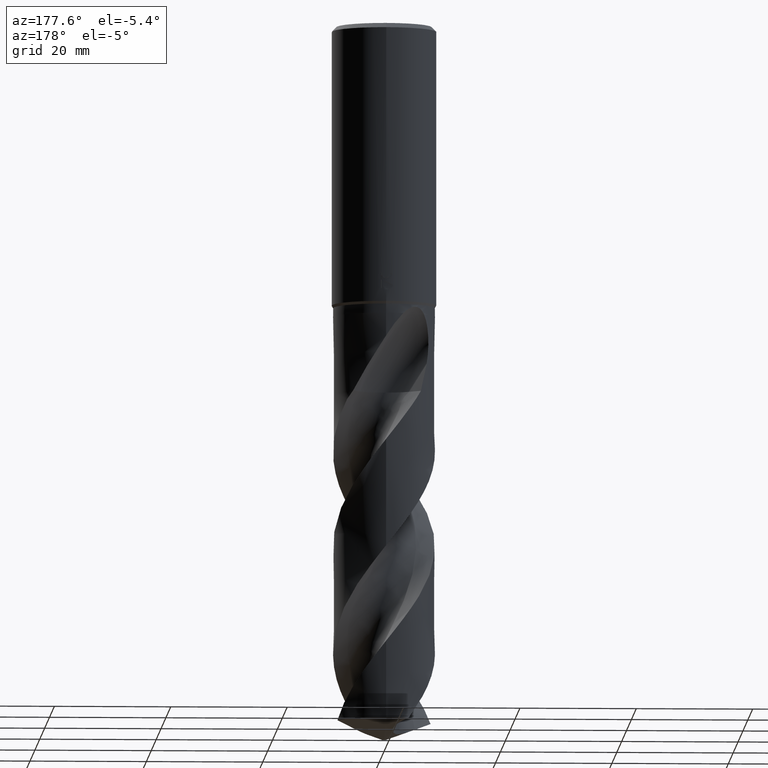
[diagram: clean part render]
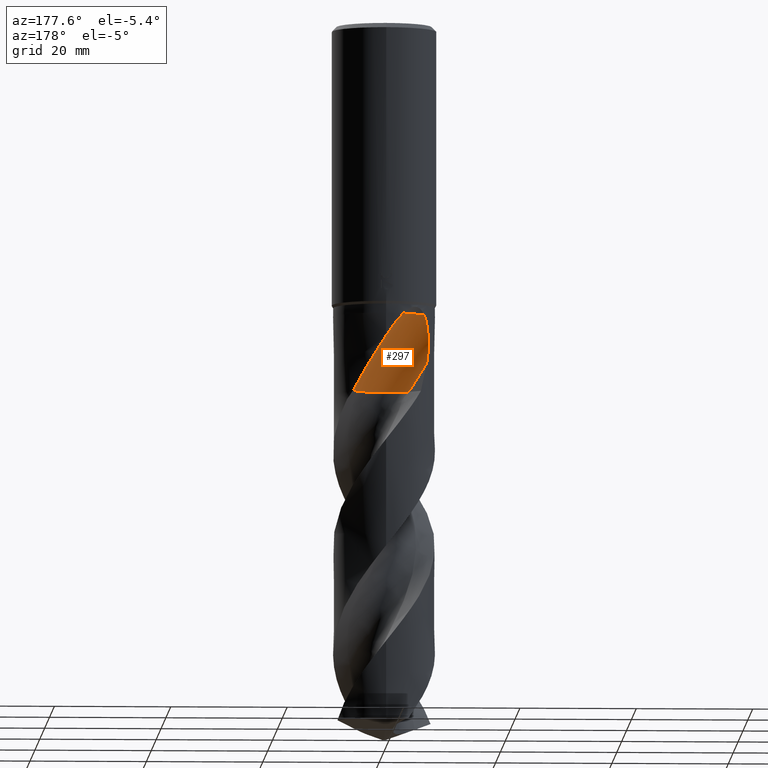
[diagram: same view with one face highlighted and labeled with its STEP entity id]
A machine part, auxiliary view. The second image highlights one B-rep face of the part: STEP entity #297.
In plain terms, the highlighted face is a SurfaceOfRevolution surface.
Its self-contained STEP definition (entity closure, byte-faithful):
#283=VERTEX_POINT('',#768);
#297=ADVANCED_FACE('',(#782),#783,.F.);
#329=EDGE_CURVE('',#283,#385,#818,.T.);
#345=VERTEX_POINT('',#834);
#385=VERTEX_POINT('',#880);
#397=VERTEX_POINT('',#894);
#435=EDGE_CURVE('',#457,#345,#939,.T.);
#445=VERTEX_POINT('',#949);
#451=EDGE_CURVE('',#555,#345,#955,.T.);
#457=VERTEX_POINT('',#961);
#555=VERTEX_POINT('',#1071);
#671=EDGE_CURVE('',#385,#555,#1196,.T.);
#673=EDGE_CURVE('',#397,#457,#1198,.T.);
#679=EDGE_CURVE('',#283,#445,#1204,.T.);
#725=EDGE_CURVE('',#445,#397,#1252,.T.);
#768=CARTESIAN_POINT('',(5.57559287318262,6.74342982981346,-63.235));
#782=FACE_OUTER_BOUND('',#1414,.T.);
#783=SURFACE_OF_REVOLUTION('',#1415,#1416);
#818=CIRCLE('',#1525,5.83333333);
#834=CARTESIAN_POINT('',(-7.11928478301169,5.08691909114738,-58.4438076343714));
#880=CARTESIAN_POINT('',(-0.629260716022749,2.65901798881034,-63.235));
#894=CARTESIAN_POINT('',(-2.97701163631891,8.22788865549491,-50.0));
#939=B_SPLINE_CURVE_WITH_KNOTS('',3,(#1879,#1880,#1881,#1882,#1883,#1884,#1885,#1886,#1887,#1888),.UNSPECIFIED.,.F.,.F.,(4,2,2,2,4),(0.0,1.64422334483908,3.9420113152009,5.14731425818044,6.40533069731672),.UNSPECIFIED.);
#949=CARTESIAN_POINT('',(-3.78455049373546E-013,8.74990563483617,-53.9339755541501));
#955=CIRCLE('',#1908,38.0210241106378);
#961=CARTESIAN_POINT('',(-6.63187349019705,5.70780203055621,-50.0));
#1071=CARTESIAN_POINT('',(-4.12478955449379,4.33354377550621,-63.235));
#1196=CIRCLE('',#5080,5.83333333);
#1198=B_SPLINE_CURVE_WITH_KNOTS('',3,(#5083,#5084,#5085,#5086,#5087,#5088,#5089,#5090,#5091,#5092),.UNSPECIFIED.,.F.,.F.,(4,2,2,2,4),(0.0,1.89437961589908,3.62938960337551,5.38410260870692,7.51281131798792),.UNSPECIFIED.);
#1204=B_SPLINE_CURVE_WITH_KNOTS('',3,(#5101,#5102,#5103,#5104,#5105,#5106,#5107,#5108,#5109,#5110,#5111,#5112,#5113,#5114),.UNSPECIFIED.,.F.,.F.,(4,2,2,2,2,2,4),(0.0,4.14988247690823,6.52862533745511,8.64910496144641,11.0925197142912,14.0430155067481,15.7093675855229),.UNSPECIFIED.);
#1252=B_SPLINE_CURVE_WITH_KNOTS('',3,(#5417,#5418,#5419,#5420,#5421,#5422,#5423,#5424,#5425,#5426,#5427,#5428,#5429,#5430),.UNSPECIFIED.,.F.,.F.,(4,2,2,2,2,2,4),(0.0,4.14988247690823,6.52862533745511,8.64910496144641,11.0925197142912,14.0430155067481,15.7093675855229),.UNSPECIFIED.);
#1414=EDGE_LOOP('',(#5467,#5468,#5469,#5470,#5471,#5472,#5473));
#1415=(B_SPLINE_CURVE(3,(#5475,#5476,#5477,#5478,#5479,#5480,#5481,#5482,#5483),.UNSPECIFIED.,.F.,.F.)B_SPLINE_CURVE_WITH_KNOTS((4,1,3,1,4),(-2.85639446721243,-2.55363934316118,-2.25088421910994,-1.9481290950587,-1.64537397100745),.UNSPECIFIED.)RATIONAL_B_SPLINE_CURVE((1.09166066513928,1.03055355504643,0.969446444953572,1.03055355504643,1.09166066513928,1.03055355504643,0.969446444953572,1.03055355504643,1.09166066513928))BOUNDED_CURVE()REPRESENTATION_ITEM('')GEOMETRIC_REPRESENTATION_ITEM()CURVE());
#1416=AXIS1_PLACEMENT('',#5490,#5491);
#1525=AXIS2_PLACEMENT_3D('',#5547,#5548,#5549);
#1879=CARTESIAN_POINT('',(-6.63187349019706,5.70780203055621,-50.0));
#1880=CARTESIAN_POINT('',(-6.84808104532585,5.45659225227045,-50.4365014790994));
#1881=CARTESIAN_POINT('',(-7.01835431055026,5.22992634720042,-50.9789288608092));
#1882=CARTESIAN_POINT('',(-7.32355230996356,4.7980632089873,-52.4715702501462));
#1883=CARTESIAN_POINT('',(-7.42450096489546,4.63008954785741,-53.5264574254388));
#1884=CARTESIAN_POINT('',(-7.43276960911426,4.61680066875962,-55.3246708938513));
#1885=CARTESIAN_POINT('',(-7.40884157712586,4.65600228667079,-55.9434451402187));
#1886=CARTESIAN_POINT('',(-7.30757089408643,4.81346859328869,-57.1955215219754));
#1887=CARTESIAN_POINT('',(-7.22816436901189,4.9345375558203,-57.8245279429822));
#1888=CARTESIAN_POINT('',(-7.11928478301168,5.08691909114738,-58.4438076343714));
#1908=AXIS2_PLACEMENT_3D('',#5718,#5719,#5720);
#5080=AXIS2_PLACEMENT_3D('',#5966,#5967,#5968);
#5083=CARTESIAN_POINT('',(-2.7419978708764,8.7999,-50.0));
#5084=CARTESIAN_POINT('',(-2.94619092063928,8.20236609440777,-50.0));
#5085=CARTESIAN_POINT('',(-3.25547046504474,7.65088679469313,-49.9999999999774));
#5086=CARTESIAN_POINT('',(-4.05543135956222,6.74677654869634,-49.9999999999774));
#5087=CARTESIAN_POINT('',(-4.51485600838567,6.39739188955216,-50.0000000000013));
#5088=CARTESIAN_POINT('',(-5.55869641553648,5.89073384664052,-50.0000000000013));
#5089=CARTESIAN_POINT('',(-6.12583509665993,5.74459975825155,-50.0000000000002));
#5090=CARTESIAN_POINT('',(-7.41506229825283,5.64931918146912,-50.0000000000002));
#5091=CARTESIAN_POINT('',(-8.12436621678291,5.74970005201506,-50.0));
#5092=CARTESIAN_POINT('',(-8.7999,5.97056682431863,-50.0));
#5101=CARTESIAN_POINT('',(5.57559287318263,6.74342982981346,-63.235));
#5102=CARTESIAN_POINT('',(5.01687867603331,7.20538290253726,-62.0568911193172));
#5103=CARTESIAN_POINT('',(4.3765175165887,7.6181161584269,-60.9553464271969));
#5104=CARTESIAN_POINT('',(3.24334606004291,8.13930051956936,-59.093538300541));
#5105=CARTESIAN_POINT('',(2.82203548269352,8.29431241382371,-58.4183832316648));
#5106=CARTESIAN_POINT('',(2.01139509427989,8.52484535974261,-57.1198497772741));
#5107=CARTESIAN_POINT('',(1.6263971279689,8.60624770816986,-56.5036412921548));
#5108=CARTESIAN_POINT('',(0.796429847563913,8.72514043273791,-55.1800668069518));
#5109=CARTESIAN_POINT('',(0.34529583133838,8.75491499320943,-54.4634048537099));
#5110=CARTESIAN_POINT('',(-0.658757541461902,8.74234259539162,-52.9225244696193));
#5111=CARTESIAN_POINT('',(-1.25236607891503,8.68247035078512,-52.0457746879718));
#5112=CARTESIAN_POINT('',(-2.21067037711961,8.47343095292311,-50.8238127998096));
#5113=CARTESIAN_POINT('',(-2.58616266633887,8.36930606984976,-50.3835962283072));
#5114=CARTESIAN_POINT('',(-2.97701163631891,8.2278886554949,-50.0));
#5417=CARTESIAN_POINT('',(5.57559287318263,6.74342982981346,-63.235));
#5418=CARTESIAN_POINT('',(5.01687867603331,7.20538290253726,-62.0568911193172));
#5419=CARTESIAN_POINT('',(4.3765175165887,7.6181161584269,-60.9553464271969));
#5420=CARTESIAN_POINT('',(3.24334606004291,8.13930051956936,-59.093538300541));
#5421=CARTESIAN_POINT('',(2.82203548269352,8.29431241382371,-58.4183832316648));
#5422=CARTESIAN_POINT('',(2.01139509427989,8.52484535974261,-57.1198497772741));
#5423=CARTESIAN_POINT('',(1.6263971279689,8.60624770816986,-56.5036412921548));
#5424=CARTESIAN_POINT('',(0.796429847563913,8.72514043273791,-55.1800668069518));
#5425=CARTESIAN_POINT('',(0.34529583133838,8.75491499320943,-54.4634048537099));
#5426=CARTESIAN_POINT('',(-0.658757541461902,8.74234259539162,-52.9225244696193));
#5427=CARTESIAN_POINT('',(-1.25236607891503,8.68247035078512,-52.0457746879718));
#5428=CARTESIAN_POINT('',(-2.21067037711961,8.47343095292311,-50.8238127998096));
#5429=CARTESIAN_POINT('',(-2.58616266633887,8.36930606984976,-50.3835962283072));
#5430=CARTESIAN_POINT('',(-2.97701163631891,8.2278886554949,-50.0));
#5467=ORIENTED_EDGE('',*,*,#435,.F.);
#5468=ORIENTED_EDGE('',*,*,#673,.F.);
#5469=ORIENTED_EDGE('',*,*,#725,.F.);
#5470=ORIENTED_EDGE('',*,*,#679,.F.);
#5471=ORIENTED_EDGE('',*,*,#329,.T.);
#5472=ORIENTED_EDGE('',*,*,#671,.T.);
#5473=ORIENTED_EDGE('',*,*,#451,.T.);
#5475=CARTESIAN_POINT('',(-4.12478955449379,4.33354377550621,-63.235));
#5476=CARTESIAN_POINT('',(-3.31694290101058,3.5256876614287,-63.235));
#5477=CARTESIAN_POINT('',(-1.2163611847413,2.37775595606222,-63.235));
#5478=CARTESIAN_POINT('',(1.1641713756664,2.62926236900058,-63.235));
#5479=CARTESIAN_POINT('',(2.22062765600387,3.06417367528262,-63.235));
#5480=CARTESIAN_POINT('',(3.27708393634134,3.49908498156466,-63.235));
#5481=CARTESIAN_POINT('',(5.14474180026248,4.99643091695966,-63.235));
#5482=CARTESIAN_POINT('',(5.8283439176027,7.29052744763972,-63.235));
#5483=CARTESIAN_POINT('',(5.8333025386348,8.43299107011262,-63.235));
#5490=CARTESIAN_POINT('',(-2.96614080323149,42.29166665,-65.0888380020197));
#5491=DIRECTION('',(0.847998304005088,-0.0,0.52999894000318));
#5547=CARTESIAN_POINT('',(2.41523139617506E-005,8.45830917768604,-63.235));
#5548=DIRECTION('',(0.0,0.0,-1.0));
#5549=DIRECTION('',(0.707102640777744,0.707110921571107,0.0));
#5718=CARTESIAN_POINT('',(-2.96614080323149,42.29166665,-65.0888380020197));
#5719=DIRECTION('',(-0.847998304005088,0.0,-0.52999894000318));
#5720=DIRECTION('',(-0.0535598123469755,-0.994880693120954,0.0856956997551607));
#5966=CARTESIAN_POINT('',(2.41523139617506E-005,8.45830917768604,-63.235));
#5967=DIRECTION('',(0.0,0.0,-1.0));
#5968=DIRECTION('',(0.707102640777744,0.707110921571107,0.0));